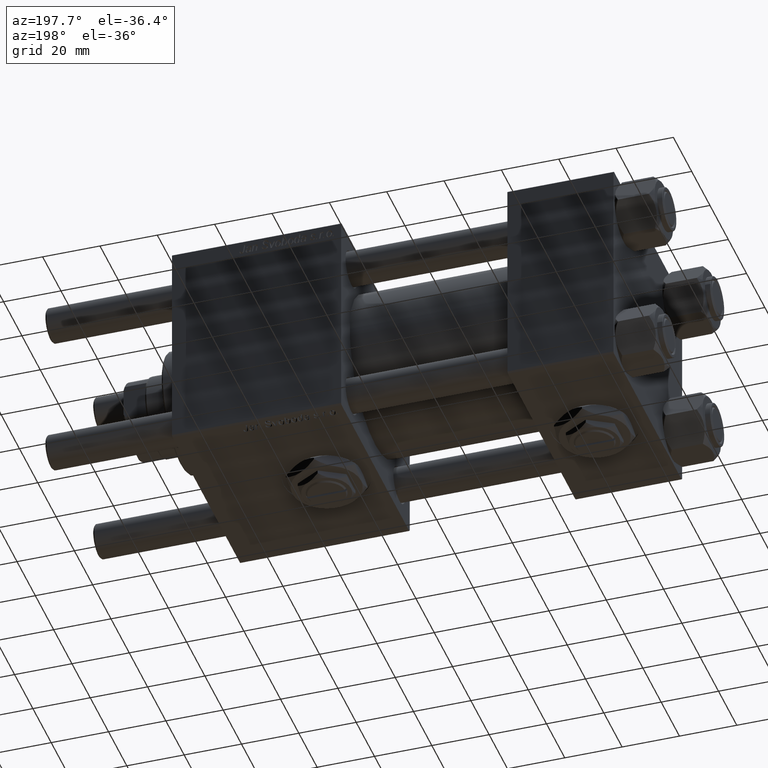
[diagram: clean part render]
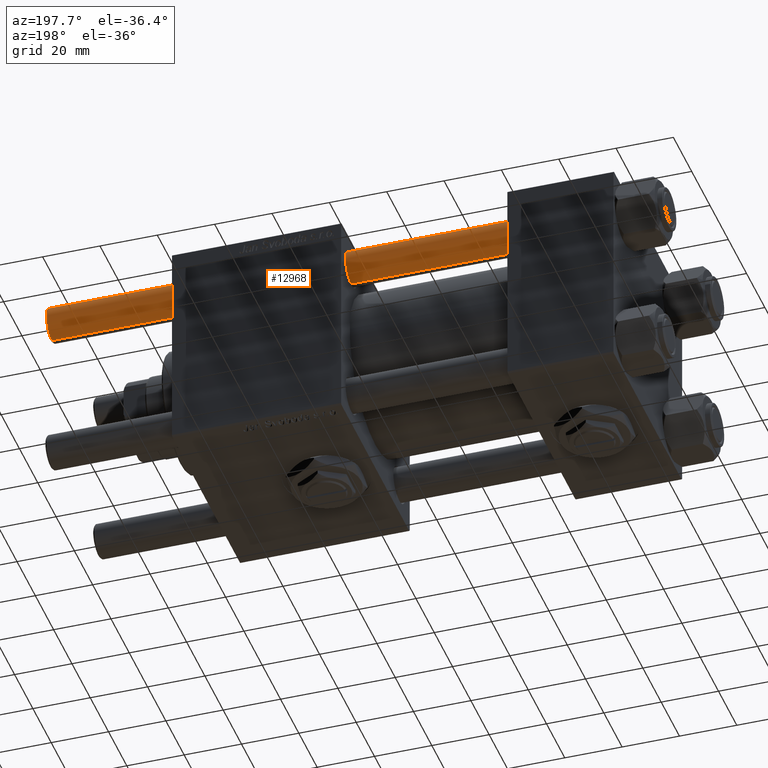
[diagram: same view with one face highlighted and labeled with its STEP entity id]
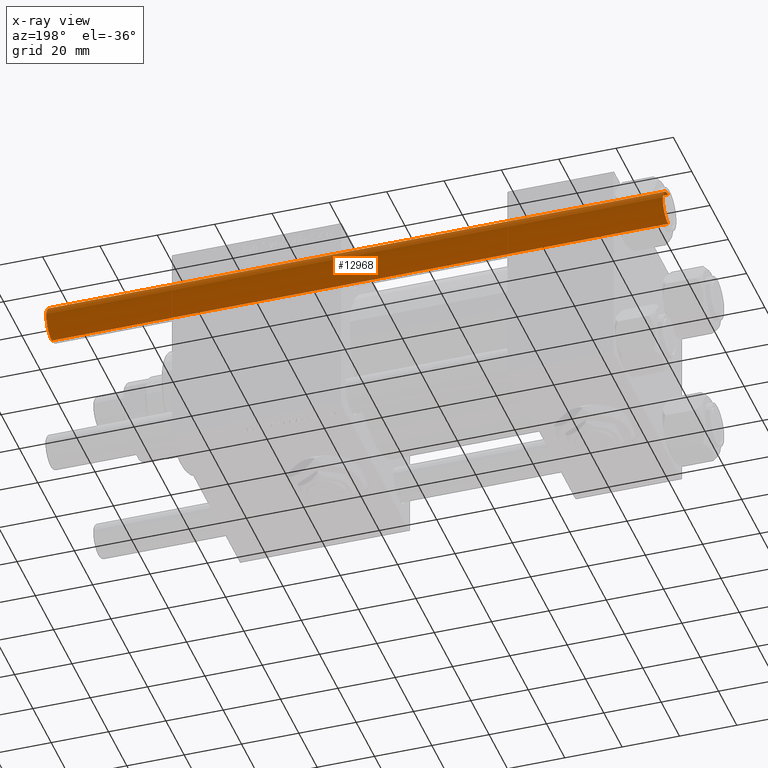
[diagram: x-ray of the same camera — body ghosted, the highlighted face saturated]
A machine part, auxiliary view. The second image highlights one B-rep face of the part: STEP entity #12968.
The next image is the same camera in x-ray: the body ghosted, the highlighted face saturated — about 0% of this face is hidden behind the body in this view.
In plain terms, the highlighted cylindrical surface (edge-blend (fillet) strip) has radius 6 mm, axis along (1, -0, -0).
Its self-contained STEP definition (entity closure, byte-faithful):
#362 = VERTEX_POINT ( 'NONE', #47491 ) ;
#574 = ORIENTED_EDGE ( 'NONE', *, *, #48158, .T. ) ;
#2047 = DIRECTION ( 'NONE',  ( -0.000000000000000000, -0.000000000000000000, 1.000000000000000000 ) ) ;
#2842 = DIRECTION ( 'NONE',  ( 1.000000000000000000, 0.000000000000000000, 0.000000000000000000 ) ) ;
#4606 = CARTESIAN_POINT ( 'NONE',  ( -6.000000000000000888, 0.000000000000000000, 0.5000000000000004441 ) ) ;
#4989 = VECTOR ( 'NONE', #40516, 1000.000000000000000 ) ;
#6352 = LINE ( 'NONE', #24444, #4989 ) ;
#8823 = VERTEX_POINT ( 'NONE', #29954 ) ;
#9116 = DIRECTION ( 'NONE',  ( -0.000000000000000000, -0.000000000000000000, -1.000000000000000000 ) ) ;
#10425 = EDGE_CURVE ( 'NONE', #8823, #26186, #44730, .T. ) ;
#12968 = ADVANCED_FACE ( 'NONE', ( #31673 ), #17441, .T. ) ;
#16943 = AXIS2_PLACEMENT_3D ( 'NONE', #44117, #2047, #51918 ) ;
#17441 = CYLINDRICAL_SURFACE ( 'NONE', #20493, 6.000000000000000888 ) ;
#20493 = AXIS2_PLACEMENT_3D ( 'NONE', #40605, #9116, #35548 ) ;
#21090 = ORIENTED_EDGE ( 'NONE', *, *, #46444, .T. ) ;
#24444 = CARTESIAN_POINT ( 'NONE',  ( 6.000000000000000888, 7.347880794884120722E-16, 216.0000000000000000 ) ) ;
#26186 = VERTEX_POINT ( 'NONE', #4606 ) ;
#27806 = CIRCLE ( 'NONE', #56287, 6.000000000000000888 ) ;
#28797 = ORIENTED_EDGE ( 'NONE', *, *, #10425, .F. ) ;
#29284 = CIRCLE ( 'NONE', #16943, 6.000000000000000888 ) ;
#29954 = CARTESIAN_POINT ( 'NONE',  ( -6.000000000000000888, 0.000000000000000000, 215.5000000000000284 ) ) ;
#31187 = CARTESIAN_POINT ( 'NONE',  ( 6.000000000000000888, 7.347880794884120722E-16, 215.5000000000000284 ) ) ;
#31673 = FACE_OUTER_BOUND ( 'NONE', #32833, .T. ) ;
#32833 = EDGE_LOOP ( 'NONE', ( #574, #21090, #40987, #28797 ) ) ;
#35511 = DIRECTION ( 'NONE',  ( -0.000000000000000000, -0.000000000000000000, -1.000000000000000000 ) ) ;
#35548 = DIRECTION ( 'NONE',  ( -1.000000000000000000, 0.000000000000000000, 0.000000000000000000 ) ) ;
#36101 = CARTESIAN_POINT ( 'NONE',  ( -6.000000000000000888, 0.000000000000000000, 216.0000000000000000 ) ) ;
#40516 = DIRECTION ( 'NONE',  ( -0.000000000000000000, -0.000000000000000000, -1.000000000000000000 ) ) ;
#40605 = CARTESIAN_POINT ( 'NONE',  ( 0.000000000000000000, 0.000000000000000000, 216.0000000000000000 ) ) ;
#40987 = ORIENTED_EDGE ( 'NONE', *, *, #52616, .T. ) ;
#44117 = CARTESIAN_POINT ( 'NONE',  ( 0.000000000000000000, 0.000000000000000000, 0.5000000000000004441 ) ) ;
#44730 = LINE ( 'NONE', #36101, #54589 ) ;
#46444 = EDGE_CURVE ( 'NONE', #57947, #362, #6352, .T. ) ;
#47113 = CARTESIAN_POINT ( 'NONE',  ( 0.000000000000000000, 0.000000000000000000, 215.5000000000000284 ) ) ;
#47491 = CARTESIAN_POINT ( 'NONE',  ( 6.000000000000000888, 7.347880794884120722E-16, 0.5000000000000004441 ) ) ;
#48158 = EDGE_CURVE ( 'NONE', #8823, #57947, #27806, .T. ) ;
#51918 = DIRECTION ( 'NONE',  ( 1.000000000000000000, 0.000000000000000000, 0.000000000000000000 ) ) ;
#52616 = EDGE_CURVE ( 'NONE', #362, #26186, #29284, .T. ) ;
#54589 = VECTOR ( 'NONE', #35511, 1000.000000000000000 ) ;
#56287 = AXIS2_PLACEMENT_3D ( 'NONE', #47113, #57188, #2842 ) ;
#57188 = DIRECTION ( 'NONE',  ( 0.000000000000000000, 0.000000000000000000, -1.000000000000000000 ) ) ;
#57947 = VERTEX_POINT ( 'NONE', #31187 ) ;